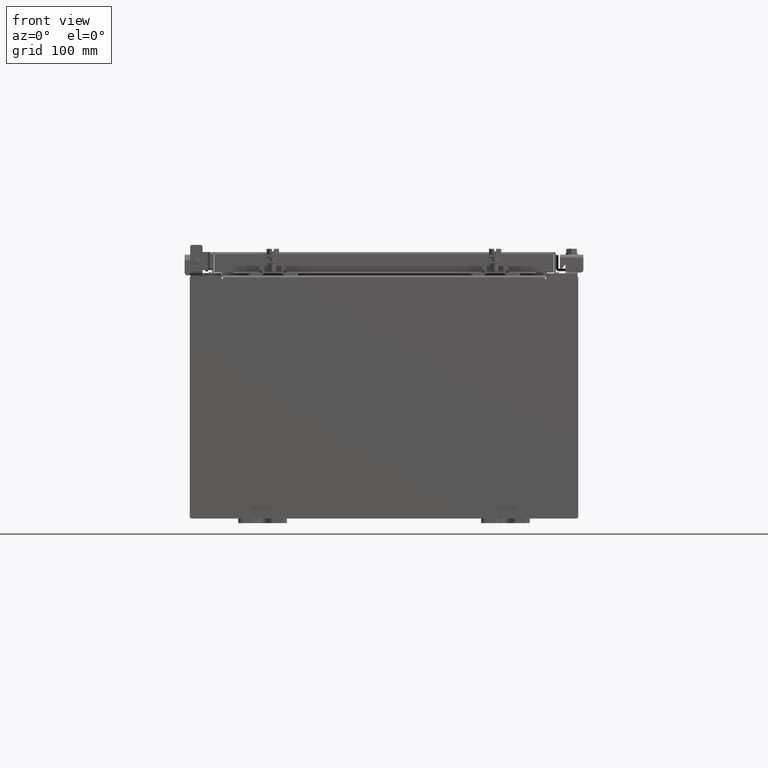
[diagram: clean part render]
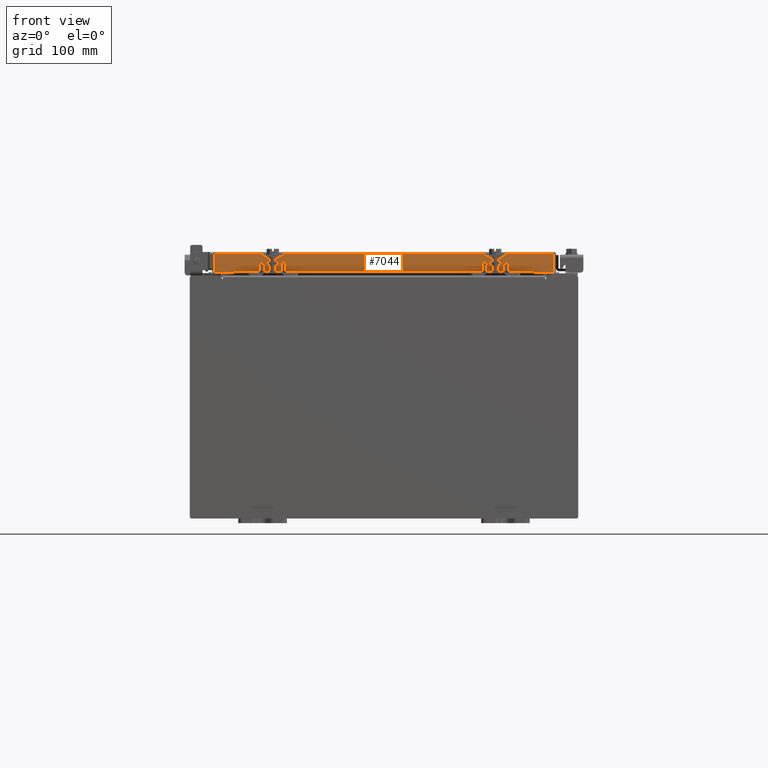
[diagram: same view with one face highlighted and labeled with its STEP entity id]
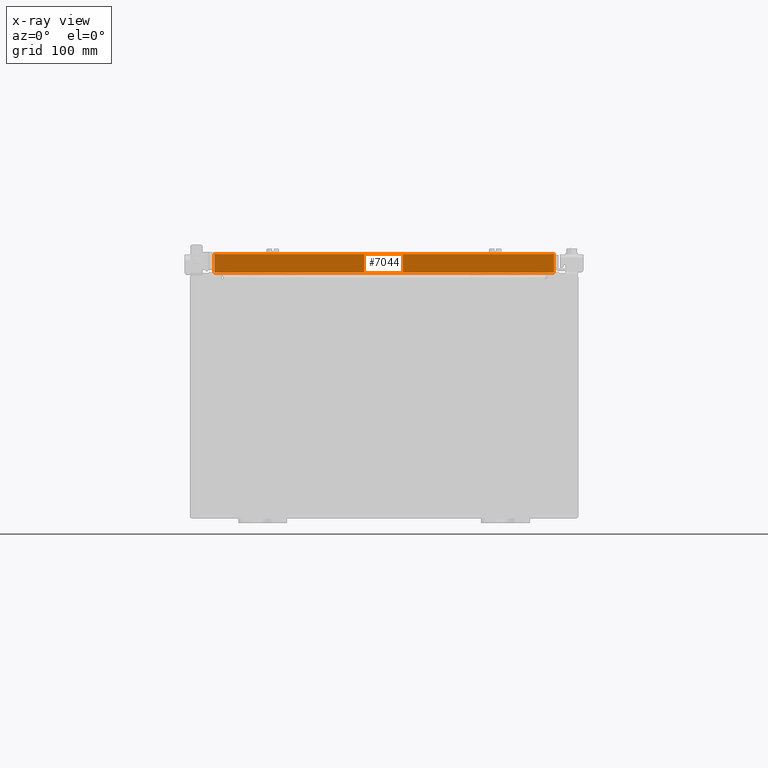
[diagram: x-ray of the same camera — body ghosted, the highlighted face saturated]
A machine part, front view. The second image highlights one B-rep face of the part: STEP entity #7044.
The next image is the same camera in x-ray: the body ghosted, the highlighted face saturated — about 0% of this face is hidden behind the body in this view.
In plain terms, the highlighted planar face has unit normal (-0, 1, -0).
Its self-contained STEP definition (entity closure, byte-faithful):
#318 = DIRECTION ( 'NONE',  ( 1.000000000000000000, 3.535949605205719200E-031, -9.638176865770768000E-046 ) ) ;
#588 = DIRECTION ( 'NONE',  ( -1.000000000000000000, -0.0000000000000000000, 1.254380613084043100E-016 ) ) ;
#927 = CARTESIAN_POINT ( 'NONE',  ( 6.239157864376263500, -9.094000000000001200, -0.8500000000000002000 ) ) ;
#1531 = VERTEX_POINT ( 'NONE', #13262 ) ;
#2362 = VERTEX_POINT ( 'NONE', #6542 ) ;
#3076 = VECTOR ( 'NONE', #18322, 39.37007874015748100 ) ;
#3855 = LINE ( 'NONE', #19376, #8476 ) ;
#3893 = CARTESIAN_POINT ( 'NONE',  ( 6.239157864376263500, -9.094000000000001200, -0.8500000000000002000 ) ) ;
#4318 = CARTESIAN_POINT ( 'NONE',  ( 7.077999999999995000, -9.094000000000004700, -0.8499999999999996400 ) ) ;
#4324 = EDGE_LOOP ( 'NONE', ( #6336, #13183, #5125, #7117, #16113, #11908 ) ) ;
#5124 = CARTESIAN_POINT ( 'NONE',  ( -6.989157864376270600, -9.094000000000004700, -0.8499999999999978700 ) ) ;
#5125 = ORIENTED_EDGE ( 'NONE', *, *, #21042, .F. ) ;
#5807 = VECTOR ( 'NONE', #15998, 39.37007874015748100 ) ;
#5915 = CARTESIAN_POINT ( 'NONE',  ( 6.989157864376266200, -9.094000000000004700, -0.8499999999999996400 ) ) ;
#6060 = DIRECTION ( 'NONE',  ( -1.000000000000000000, -0.0000000000000000000, 1.254380613084043100E-016 ) ) ;
#6202 = VERTEX_POINT ( 'NONE', #927 ) ;
#6336 = ORIENTED_EDGE ( 'NONE', *, *, #19781, .F. ) ;
#6542 = CARTESIAN_POINT ( 'NONE',  ( -6.989157864376271500, -9.094000000000003000, -0.08770000000000007000 ) ) ;
#6592 = EDGE_CURVE ( 'NONE', #2362, #13907, #3855, .T. ) ;
#6755 = EDGE_CURVE ( 'NONE', #7781, #6202, #11501, .T. ) ;
#6807 = VECTOR ( 'NONE', #6060, 39.37007874015748100 ) ;
#7044 = ADVANCED_FACE ( 'NONE', ( #9564 ), #19820, .F. ) ;
#7117 = ORIENTED_EDGE ( 'NONE', *, *, #14660, .F. ) ;
#7555 = CARTESIAN_POINT ( 'NONE',  ( 7.077999999999995000, -9.094000000000004700, -0.8499999999999996400 ) ) ;
#7781 = VERTEX_POINT ( 'NONE', #5915 ) ;
#8476 = VECTOR ( 'NONE', #8923, 39.37007874015748100 ) ;
#8923 = DIRECTION ( 'NONE',  ( 0.0000000000000000000, -2.818880942772360100E-015, -1.000000000000000000 ) ) ;
#9297 = CARTESIAN_POINT ( 'NONE',  ( 3.215592570974081200E-030, -9.094000000000003000, 2.589571694958343600E-014 ) ) ;
#9389 = DIRECTION ( 'NONE',  ( -3.535949605205718300E-031, 1.000000000000000000, -2.818880942772360100E-015 ) ) ;
#9564 = FACE_OUTER_BOUND ( 'NONE', #4324, .T. ) ;
#9603 = VERTEX_POINT ( 'NONE', #11401 ) ;
#10010 = EDGE_CURVE ( 'NONE', #9603, #7781, #15871, .T. ) ;
#10948 = VECTOR ( 'NONE', #588, 39.37007874015748100 ) ;
#11401 = CARTESIAN_POINT ( 'NONE',  ( 6.989157864376266200, -9.094000000000003000, -0.08770000000000007000 ) ) ;
#11501 = LINE ( 'NONE', #7555, #10948 ) ;
#11908 = ORIENTED_EDGE ( 'NONE', *, *, #10010, .F. ) ;
#12034 = LINE ( 'NONE', #4318, #6807 ) ;
#13064 = CARTESIAN_POINT ( 'NONE',  ( 6.989157864376266200, -9.094000000000003000, -0.07469999999999978000 ) ) ;
#13183 = ORIENTED_EDGE ( 'NONE', *, *, #6592, .T. ) ;
#13262 = CARTESIAN_POINT ( 'NONE',  ( -6.239157864376270600, -9.094000000000001200, -0.8500000000000002000 ) ) ;
#13907 = VERTEX_POINT ( 'NONE', #5124 ) ;
#14660 = EDGE_CURVE ( 'NONE', #6202, #1531, #19176, .T. ) ;
#15327 = VECTOR ( 'NONE', #318, 39.37007874015748100 ) ;
#15871 = LINE ( 'NONE', #13064, #3076 ) ;
#15873 = LINE ( 'NONE', #21084, #15327 ) ;
#15998 = DIRECTION ( 'NONE',  ( -1.000000000000000000, 0.0000000000000000000, 0.0000000000000000000 ) ) ;
#16113 = ORIENTED_EDGE ( 'NONE', *, *, #6755, .F. ) ;
#18322 = DIRECTION ( 'NONE',  ( -0.0000000000000000000, -2.818880942772360100E-015, -1.000000000000000000 ) ) ;
#19176 = LINE ( 'NONE', #3893, #5807 ) ;
#19376 = CARTESIAN_POINT ( 'NONE',  ( -6.989157864376271500, -9.094000000000003000, 2.589571694958343600E-014 ) ) ;
#19781 = EDGE_CURVE ( 'NONE', #2362, #9603, #15873, .T. ) ;
#19820 = PLANE ( 'NONE',  #22130 ) ;
#21042 = EDGE_CURVE ( 'NONE', #1531, #13907, #12034, .T. ) ;
#21084 = CARTESIAN_POINT ( 'NONE',  ( 7.077999999999995900, -9.094000000000003000, -0.08770000000000007000 ) ) ;
#21583 = DIRECTION ( 'NONE',  ( 0.0000000000000000000, 2.818880942772360100E-015, 1.000000000000000000 ) ) ;
#22130 = AXIS2_PLACEMENT_3D ( 'NONE', #9297, #9389, #21583 ) ;